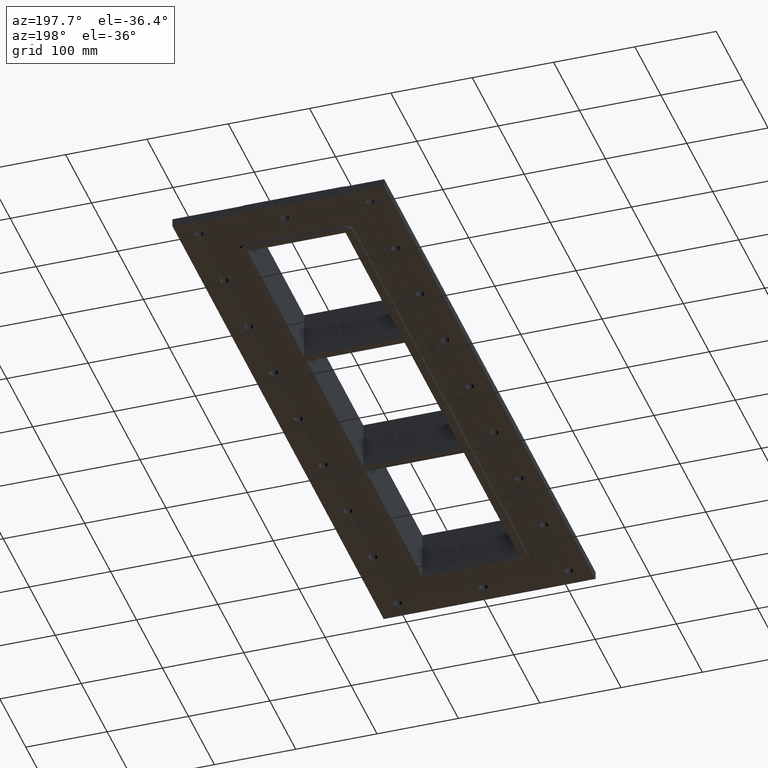
[diagram: clean part render]
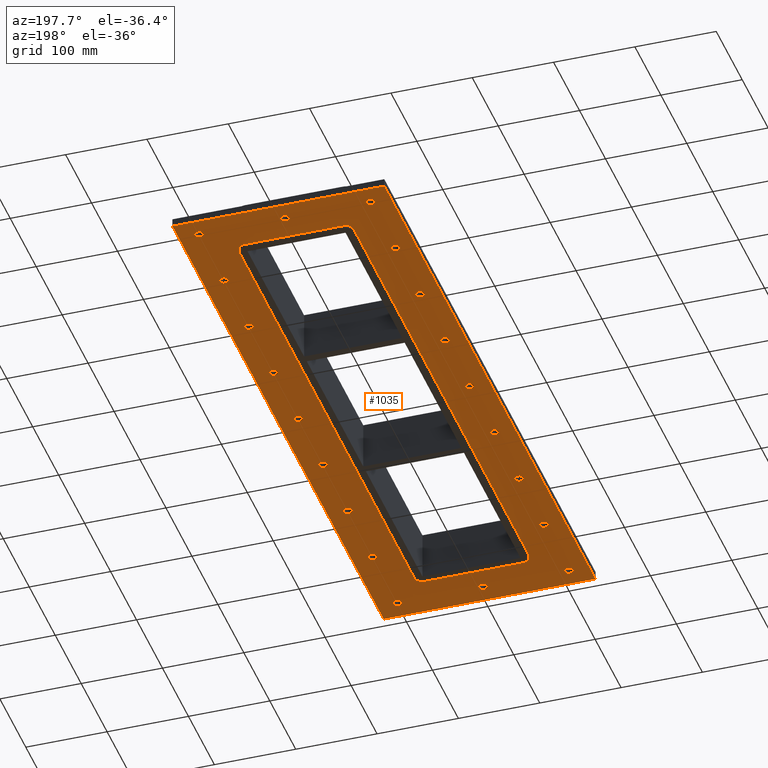
[diagram: same view with one face highlighted and labeled with its STEP entity id]
A machine part, auxiliary view. The second image highlights one B-rep face of the part: STEP entity #1035.
In plain terms, the highlighted planar face has unit normal (0, 0, 1).
Its self-contained STEP definition (entity closure, byte-faithful):
#73=CARTESIAN_POINT('',(-5.24999999999995,-381.99999999999994,-27.000000000000028));
#74=VERTEX_POINT('',#73);
#75=CARTESIAN_POINT('',(5.329071E-014,-381.99999999999994,-27.000000000000028));
#76=DIRECTION('',(0.0,0.0,1.0));
#77=DIRECTION('',(1.0,0.0,0.0));
#78=AXIS2_PLACEMENT_3D('',#75,#76,#77);
#79=CIRCLE('',#78,5.25);
#80=EDGE_CURVE('',#74,#74,#79,.T.);
#101=CARTESIAN_POINT('',(-5.250000000000057,382.00000000000011,-27.000000000000028));
#102=VERTEX_POINT('',#101);
#103=CARTESIAN_POINT('',(-5.329071E-014,382.00000000000011,-27.000000000000028));
#104=DIRECTION('',(0.0,0.0,1.0));
#105=DIRECTION('',(1.0,0.0,0.0));
#106=AXIS2_PLACEMENT_3D('',#103,#104,#105);
#107=CIRCLE('',#106,5.25);
#108=EDGE_CURVE('',#102,#102,#107,.T.);
#129=CARTESIAN_POINT('',(100.00000000000003,-286.5,-27.000000000000028));
#130=VERTEX_POINT('',#129);
#131=CARTESIAN_POINT('',(105.25000000000004,-286.5,-27.000000000000028));
#132=DIRECTION('',(0.0,0.0,1.0));
#133=DIRECTION('',(1.0,0.0,0.0));
#134=AXIS2_PLACEMENT_3D('',#131,#132,#133);
#135=CIRCLE('',#134,5.25);
#136=EDGE_CURVE('',#130,#130,#135,.T.);
#157=CARTESIAN_POINT('',(100.00000000000001,-190.99999999999991,-27.000000000000028));
#158=VERTEX_POINT('',#157);
#159=CARTESIAN_POINT('',(105.25000000000003,-190.99999999999991,-27.000000000000028));
#160=DIRECTION('',(0.0,0.0,1.0));
#161=DIRECTION('',(1.0,0.0,0.0));
#162=AXIS2_PLACEMENT_3D('',#159,#160,#161);
#163=CIRCLE('',#162,5.25);
#164=EDGE_CURVE('',#158,#158,#163,.T.);
#185=CARTESIAN_POINT('',(100.00000000000001,-95.499999999999943,-27.000000000000028));
#186=VERTEX_POINT('',#185);
#187=CARTESIAN_POINT('',(105.25000000000003,-95.499999999999943,-27.000000000000028));
#188=DIRECTION('',(0.0,0.0,1.0));
#189=DIRECTION('',(1.0,0.0,0.0));
#190=AXIS2_PLACEMENT_3D('',#187,#188,#189);
#191=CIRCLE('',#190,5.25);
#192=EDGE_CURVE('',#186,#186,#191,.T.);
#213=CARTESIAN_POINT('',(100.0,7.105427E-014,-27.000000000000028));
#214=VERTEX_POINT('',#213);
#215=CARTESIAN_POINT('',(105.25,7.105427E-014,-27.000000000000028));
#216=DIRECTION('',(0.0,0.0,1.0));
#217=DIRECTION('',(1.0,0.0,0.0));
#218=AXIS2_PLACEMENT_3D('',#215,#216,#217);
#219=CIRCLE('',#218,5.25);
#220=EDGE_CURVE('',#214,#214,#219,.T.);
#241=CARTESIAN_POINT('',(100.0,95.500000000000085,-27.000000000000028));
#242=VERTEX_POINT('',#241);
#243=CARTESIAN_POINT('',(105.25,95.500000000000085,-27.000000000000028));
#244=DIRECTION('',(0.0,0.0,1.0));
#245=DIRECTION('',(1.0,0.0,0.0));
#246=AXIS2_PLACEMENT_3D('',#243,#244,#245);
#247=CIRCLE('',#246,5.25);
#248=EDGE_CURVE('',#242,#242,#247,.T.);
#269=CARTESIAN_POINT('',(99.999999999999986,191.00000000000009,-27.000000000000028));
#270=VERTEX_POINT('',#269);
#271=CARTESIAN_POINT('',(105.24999999999999,191.00000000000009,-27.000000000000028));
#272=DIRECTION('',(0.0,0.0,1.0));
#273=DIRECTION('',(1.0,0.0,0.0));
#274=AXIS2_PLACEMENT_3D('',#271,#272,#273);
#275=CIRCLE('',#274,5.25);
#276=EDGE_CURVE('',#270,#270,#275,.T.);
#297=CARTESIAN_POINT('',(99.999999999999986,286.50000000000011,-27.000000000000028));
#298=VERTEX_POINT('',#297);
#299=CARTESIAN_POINT('',(105.24999999999999,286.50000000000011,-27.000000000000028));
#300=DIRECTION('',(0.0,0.0,1.0));
#301=DIRECTION('',(1.0,0.0,0.0));
#302=AXIS2_PLACEMENT_3D('',#299,#300,#301);
#303=CIRCLE('',#302,5.25);
#304=EDGE_CURVE('',#298,#298,#303,.T.);
#325=CARTESIAN_POINT('',(-110.50000000000004,286.50000000000017,-27.000000000000028));
#326=VERTEX_POINT('',#325);
#327=CARTESIAN_POINT('',(-105.25000000000004,286.50000000000017,-27.000000000000028));
#328=DIRECTION('',(0.0,0.0,1.0));
#329=DIRECTION('',(1.0,0.0,0.0));
#330=AXIS2_PLACEMENT_3D('',#327,#328,#329);
#331=CIRCLE('',#330,5.25);
#332=EDGE_CURVE('',#326,#326,#331,.T.);
#353=CARTESIAN_POINT('',(-110.50000000000003,191.00000000000006,-27.000000000000028));
#354=VERTEX_POINT('',#353);
#355=CARTESIAN_POINT('',(-105.25000000000003,191.00000000000006,-27.000000000000028));
#356=DIRECTION('',(0.0,0.0,1.0));
#357=DIRECTION('',(1.0,0.0,0.0));
#358=AXIS2_PLACEMENT_3D('',#355,#356,#357);
#359=CIRCLE('',#358,5.25);
#360=EDGE_CURVE('',#354,#354,#359,.T.);
#381=CARTESIAN_POINT('',(-110.50000000000003,95.500000000000085,-27.000000000000028));
#382=VERTEX_POINT('',#381);
#383=CARTESIAN_POINT('',(-105.25000000000003,95.500000000000085,-27.000000000000028));
#384=DIRECTION('',(0.0,0.0,1.0));
#385=DIRECTION('',(1.0,0.0,0.0));
#386=AXIS2_PLACEMENT_3D('',#383,#384,#385);
#387=CIRCLE('',#386,5.25);
#388=EDGE_CURVE('',#382,#382,#387,.T.);
#409=CARTESIAN_POINT('',(-110.5,7.105427E-014,-27.000000000000028));
#410=VERTEX_POINT('',#409);
#411=CARTESIAN_POINT('',(-105.25,7.105427E-014,-27.000000000000028));
#412=DIRECTION('',(0.0,0.0,1.0));
#413=DIRECTION('',(1.0,0.0,0.0));
#414=AXIS2_PLACEMENT_3D('',#411,#412,#413);
#415=CIRCLE('',#414,5.25);
#416=EDGE_CURVE('',#410,#410,#415,.T.);
#437=CARTESIAN_POINT('',(-110.5,-95.499999999999943,-27.000000000000028));
#438=VERTEX_POINT('',#437);
#439=CARTESIAN_POINT('',(-105.25,-95.499999999999943,-27.000000000000028));
#440=DIRECTION('',(0.0,0.0,1.0));
#441=DIRECTION('',(1.0,0.0,0.0));
#442=AXIS2_PLACEMENT_3D('',#439,#440,#441);
#443=CIRCLE('',#442,5.25);
#444=EDGE_CURVE('',#438,#438,#443,.T.);
#465=CARTESIAN_POINT('',(-110.49999999999999,-190.99999999999994,-27.000000000000028));
#466=VERTEX_POINT('',#465);
#467=CARTESIAN_POINT('',(-105.24999999999999,-190.99999999999994,-27.000000000000028));
#468=DIRECTION('',(0.0,0.0,1.0));
#469=DIRECTION('',(1.0,0.0,0.0));
#470=AXIS2_PLACEMENT_3D('',#467,#468,#469);
#471=CIRCLE('',#470,5.25);
#472=EDGE_CURVE('',#466,#466,#471,.T.);
#493=CARTESIAN_POINT('',(-110.49999999999999,-286.49999999999994,-27.000000000000028));
#494=VERTEX_POINT('',#493);
#495=CARTESIAN_POINT('',(-105.24999999999999,-286.49999999999994,-27.000000000000028));
#496=DIRECTION('',(0.0,0.0,1.0));
#497=DIRECTION('',(1.0,0.0,0.0));
#498=AXIS2_PLACEMENT_3D('',#495,#496,#497);
#499=CIRCLE('',#498,5.25);
#500=EDGE_CURVE('',#494,#494,#499,.T.);
#521=CARTESIAN_POINT('',(-110.50000000000006,382.00000000000011,-27.000000000000028));
#522=VERTEX_POINT('',#521);
#523=CARTESIAN_POINT('',(-105.25000000000006,382.00000000000011,-27.000000000000028));
#524=DIRECTION('',(0.0,0.0,1.0));
#525=DIRECTION('',(1.0,0.0,0.0));
#526=AXIS2_PLACEMENT_3D('',#523,#524,#525);
#527=CIRCLE('',#526,5.25);
#528=EDGE_CURVE('',#522,#522,#527,.T.);
#549=CARTESIAN_POINT('',(99.999999999999986,382.00000000000011,-27.000000000000028));
#550=VERTEX_POINT('',#549);
#551=CARTESIAN_POINT('',(105.24999999999999,382.00000000000011,-27.000000000000028));
#552=DIRECTION('',(0.0,0.0,1.0));
#553=DIRECTION('',(1.0,0.0,0.0));
#554=AXIS2_PLACEMENT_3D('',#551,#552,#553);
#555=CIRCLE('',#554,5.25);
#556=EDGE_CURVE('',#550,#550,#555,.T.);
#577=CARTESIAN_POINT('',(100.00000000000006,-381.99999999999994,-27.000000000000028));
#578=VERTEX_POINT('',#577);
#579=CARTESIAN_POINT('',(105.25000000000006,-381.99999999999994,-27.000000000000028));
#580=DIRECTION('',(0.0,0.0,1.0));
#581=DIRECTION('',(1.0,0.0,0.0));
#582=AXIS2_PLACEMENT_3D('',#579,#580,#581);
#583=CIRCLE('',#582,5.25);
#584=EDGE_CURVE('',#578,#578,#583,.T.);
#605=CARTESIAN_POINT('',(-110.49999999999999,-381.99999999999994,-27.000000000000028));
#606=VERTEX_POINT('',#605);
#607=CARTESIAN_POINT('',(-105.24999999999999,-381.99999999999994,-27.000000000000028));
#608=DIRECTION('',(0.0,0.0,1.0));
#609=DIRECTION('',(1.0,0.0,0.0));
#610=AXIS2_PLACEMENT_3D('',#607,#608,#609);
#611=CIRCLE('',#610,5.25);
#612=EDGE_CURVE('',#606,#606,#611,.T.);
#633=CARTESIAN_POINT('',(-130.25,-407.0,-27.0));
#634=VERTEX_POINT('',#633);
#635=CARTESIAN_POINT('',(-130.25000000000006,407.0,-27.0));
#636=VERTEX_POINT('',#635);
#637=CARTESIAN_POINT('',(-130.25,-407.0,-27.0));
#638=DIRECTION('',(0.0,1.0,0.0));
#639=VECTOR('',#638,814.0);
#640=LINE('',#637,#639);
#641=EDGE_CURVE('',#634,#636,#640,.T.);
#673=CARTESIAN_POINT('',(130.25,407.00000000000011,-27.0));
#674=VERTEX_POINT('',#673);
#675=CARTESIAN_POINT('',(-130.25000000000006,407.0,-27.0));
#676=DIRECTION('',(1.0,0.0,0.0));
#677=VECTOR('',#676,260.50000000000006);
#678=LINE('',#675,#677);
#679=EDGE_CURVE('',#636,#674,#678,.T.);
#704=CARTESIAN_POINT('',(130.25000000000006,-406.99999999999994,-27.0));
#705=VERTEX_POINT('',#704);
#706=CARTESIAN_POINT('',(130.25,407.00000000000011,-27.0));
#707=DIRECTION('',(0.0,-1.0,0.0));
#708=VECTOR('',#707,814.0);
#709=LINE('',#706,#708);
#710=EDGE_CURVE('',#674,#705,#709,.T.);
#735=CARTESIAN_POINT('',(130.25000000000006,-406.99999999999994,-27.0));
#736=DIRECTION('',(-1.0,0.0,0.0));
#737=VECTOR('',#736,260.50000000000006);
#738=LINE('',#735,#737);
#739=EDGE_CURVE('',#705,#634,#738,.T.);
#894=CARTESIAN_POINT('',(0.0,2.691400E-014,-27.0));
#895=DIRECTION('',(0.0,0.0,1.0));
#896=DIRECTION('',(1.0,0.0,0.0));
#897=AXIS2_PLACEMENT_3D('',#894,#895,#896);
#898=PLANE('',#897);
#899=ORIENTED_EDGE('',*,*,#739,.T.);
#900=ORIENTED_EDGE('',*,*,#641,.T.);
#901=ORIENTED_EDGE('',*,*,#679,.T.);
#902=ORIENTED_EDGE('',*,*,#710,.T.);
#903=EDGE_LOOP('',(#899,#900,#901,#902));
#904=FACE_OUTER_BOUND('',#903,.T.);
#905=ORIENTED_EDGE('',*,*,#80,.T.);
#906=EDGE_LOOP('',(#905));
#907=FACE_BOUND('',#906,.T.);
#908=ORIENTED_EDGE('',*,*,#108,.T.);
#909=EDGE_LOOP('',(#908));
#910=FACE_BOUND('',#909,.T.);
#911=ORIENTED_EDGE('',*,*,#136,.T.);
#912=EDGE_LOOP('',(#911));
#913=FACE_BOUND('',#912,.T.);
#914=ORIENTED_EDGE('',*,*,#164,.T.);
#915=EDGE_LOOP('',(#914));
#916=FACE_BOUND('',#915,.T.);
#917=ORIENTED_EDGE('',*,*,#192,.T.);
#918=EDGE_LOOP('',(#917));
#919=FACE_BOUND('',#918,.T.);
#920=ORIENTED_EDGE('',*,*,#220,.T.);
#921=EDGE_LOOP('',(#920));
#922=FACE_BOUND('',#921,.T.);
#923=ORIENTED_EDGE('',*,*,#248,.T.);
#924=EDGE_LOOP('',(#923));
#925=FACE_BOUND('',#924,.T.);
#926=ORIENTED_EDGE('',*,*,#276,.T.);
#927=EDGE_LOOP('',(#926));
#928=FACE_BOUND('',#927,.T.);
#929=ORIENTED_EDGE('',*,*,#304,.T.);
#930=EDGE_LOOP('',(#929));
#931=FACE_BOUND('',#930,.T.);
#932=ORIENTED_EDGE('',*,*,#332,.T.);
#933=EDGE_LOOP('',(#932));
#934=FACE_BOUND('',#933,.T.);
#935=ORIENTED_EDGE('',*,*,#360,.T.);
#936=EDGE_LOOP('',(#935));
#937=FACE_BOUND('',#936,.T.);
#938=ORIENTED_EDGE('',*,*,#388,.T.);
#939=EDGE_LOOP('',(#938));
#940=FACE_BOUND('',#939,.T.);
#941=ORIENTED_EDGE('',*,*,#416,.T.);
#942=EDGE_LOOP('',(#941));
#943=FACE_BOUND('',#942,.T.);
#944=ORIENTED_EDGE('',*,*,#444,.T.);
#945=EDGE_LOOP('',(#944));
#946=FACE_BOUND('',#945,.T.);
#947=ORIENTED_EDGE('',*,*,#472,.T.);
#948=EDGE_LOOP('',(#947));
#949=FACE_BOUND('',#948,.T.);
#950=ORIENTED_EDGE('',*,*,#500,.T.);
#951=EDGE_LOOP('',(#950));
#952=FACE_BOUND('',#951,.T.);
#953=ORIENTED_EDGE('',*,*,#528,.T.);
#954=EDGE_LOOP('',(#953));
#955=FACE_BOUND('',#954,.T.);
#956=ORIENTED_EDGE('',*,*,#556,.T.);
#957=EDGE_LOOP('',(#956));
#958=FACE_BOUND('',#957,.T.);
#959=ORIENTED_EDGE('',*,*,#584,.T.);
#960=EDGE_LOOP('',(#959));
#961=FACE_BOUND('',#960,.T.);
#962=ORIENTED_EDGE('',*,*,#612,.T.);
#963=EDGE_LOOP('',(#962));
#964=FACE_BOUND('',#963,.T.);
#965=CARTESIAN_POINT('',(60.249999999999915,347.0,-27.0));
#966=VERTEX_POINT('',#965);
#967=CARTESIAN_POINT('',(70.249999999999915,337.0,-27.0));
#968=VERTEX_POINT('',#967);
#969=CARTESIAN_POINT('',(60.249999999999915,337.0,-27.0));
#970=DIRECTION('',(0.0,0.0,-1.0));
#971=DIRECTION('',(0.707106781186547,0.707106781186547,0.0));
#972=AXIS2_PLACEMENT_3D('',#969,#970,#971);
#973=CIRCLE('',#972,9.999999999999998);
#974=EDGE_CURVE('',#966,#968,#973,.T.);
#975=ORIENTED_EDGE('',*,*,#974,.F.);
#976=CARTESIAN_POINT('',(-60.250000000000057,347.0,-27.0));
#977=VERTEX_POINT('',#976);
#978=CARTESIAN_POINT('',(-60.250000000000057,347.0,-27.0));
#979=DIRECTION('',(1.0,0.0,0.0));
#980=VECTOR('',#979,120.49999999999997);
#981=LINE('',#978,#980);
#982=EDGE_CURVE('',#977,#966,#981,.T.);
#983=ORIENTED_EDGE('',*,*,#982,.F.);
#984=CARTESIAN_POINT('',(-70.250000000000128,337.0,-27.0));
#985=VERTEX_POINT('',#984);
#986=CARTESIAN_POINT('',(-60.250000000000128,337.0,-27.0));
#987=DIRECTION('',(0.0,0.0,-1.0));
#988=DIRECTION('',(-0.707106781186547,0.707106781186547,0.0));
#989=AXIS2_PLACEMENT_3D('',#986,#987,#988);
#990=CIRCLE('',#989,9.999999999999998);
#991=EDGE_CURVE('',#985,#977,#990,.T.);
#992=ORIENTED_EDGE('',*,*,#991,.F.);
#993=CARTESIAN_POINT('',(-70.249999999999986,-337.0,-27.0));
#994=VERTEX_POINT('',#993);
#995=CARTESIAN_POINT('',(-70.249999999999915,-337.00000000000006,-27.0));
#996=DIRECTION('',(0.0,1.0,0.0));
#997=VECTOR('',#996,674.0);
#998=LINE('',#995,#997);
#999=EDGE_CURVE('',#994,#985,#998,.T.);
#1000=ORIENTED_EDGE('',*,*,#999,.F.);
#1001=CARTESIAN_POINT('',(-60.249999999999986,-347.0,-27.0));
#1002=VERTEX_POINT('',#1001);
#1003=CARTESIAN_POINT('',(-60.249999999999915,-337.0,-27.0));
#1004=DIRECTION('',(0.0,0.0,-1.0));
#1005=DIRECTION('',(-0.707106781186547,-0.707106781186547,0.0));
#1006=AXIS2_PLACEMENT_3D('',#1003,#1004,#1005);
#1007=CIRCLE('',#1006,9.999999999999998);
#1008=EDGE_CURVE('',#1002,#994,#1007,.T.);
#1009=ORIENTED_EDGE('',*,*,#1008,.F.);
#1010=CARTESIAN_POINT('',(60.250000000000057,-347.0,-27.0));
#1011=VERTEX_POINT('',#1010);
#1012=CARTESIAN_POINT('',(60.250000000000057,-347.0,-27.0));
#1013=DIRECTION('',(-1.0,0.0,0.0));
#1014=VECTOR('',#1013,120.50000000000004);
#1015=LINE('',#1012,#1014);
#1016=EDGE_CURVE('',#1011,#1002,#1015,.T.);
#1017=ORIENTED_EDGE('',*,*,#1016,.F.);
#1018=CARTESIAN_POINT('',(70.249999999999986,-337.0,-27.0));
#1019=VERTEX_POINT('',#1018);
#1020=CARTESIAN_POINT('',(60.249999999999986,-337.0,-27.0));
#1021=DIRECTION('',(0.0,0.0,-1.0));
#1022=DIRECTION('',(0.707106781186547,-0.707106781186547,0.0));
#1023=AXIS2_PLACEMENT_3D('',#1020,#1021,#1022);
#1024=CIRCLE('',#1023,9.999999999999998);
#1025=EDGE_CURVE('',#1019,#1011,#1024,.T.);
#1026=ORIENTED_EDGE('',*,*,#1025,.F.);
#1027=CARTESIAN_POINT('',(70.249999999999915,337.00000000000006,-27.0));
#1028=DIRECTION('',(0.0,-1.0,0.0));
#1029=VECTOR('',#1028,674.0);
#1030=LINE('',#1027,#1029);
#1031=EDGE_CURVE('',#968,#1019,#1030,.T.);
#1032=ORIENTED_EDGE('',*,*,#1031,.F.);
#1033=EDGE_LOOP('',(#975,#983,#992,#1000,#1009,#1017,#1026,#1032));
#1034=FACE_BOUND('',#1033,.T.);
#1035=ADVANCED_FACE('',(#904,#907,#910,#913,#916,#919,#922,#925,#928,#931,#934,#937,#940,#943,#946,#949,#952,#955,#958,#961,#964,#1034),#898,.F.);